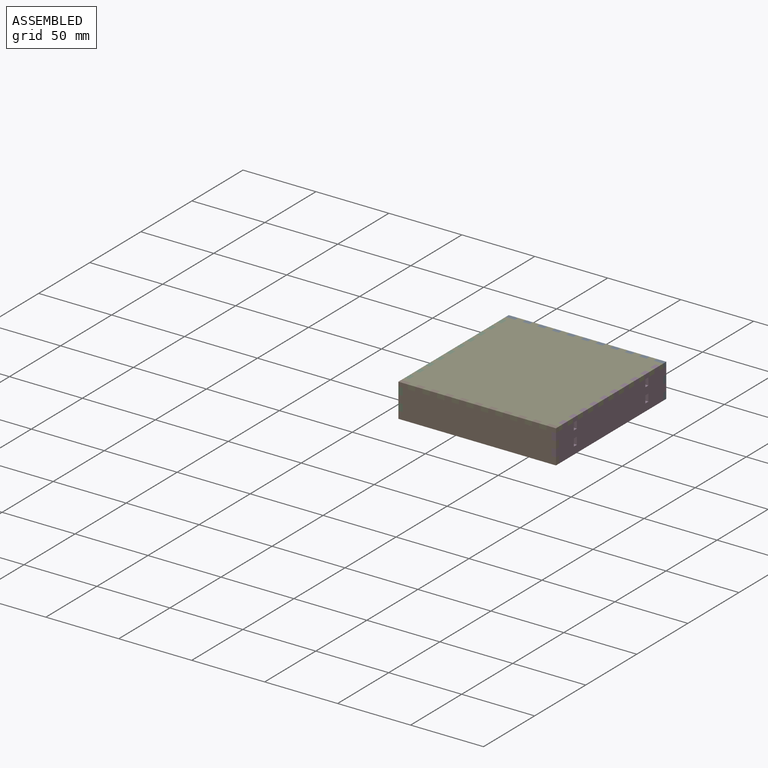
[diagram: assembled view]
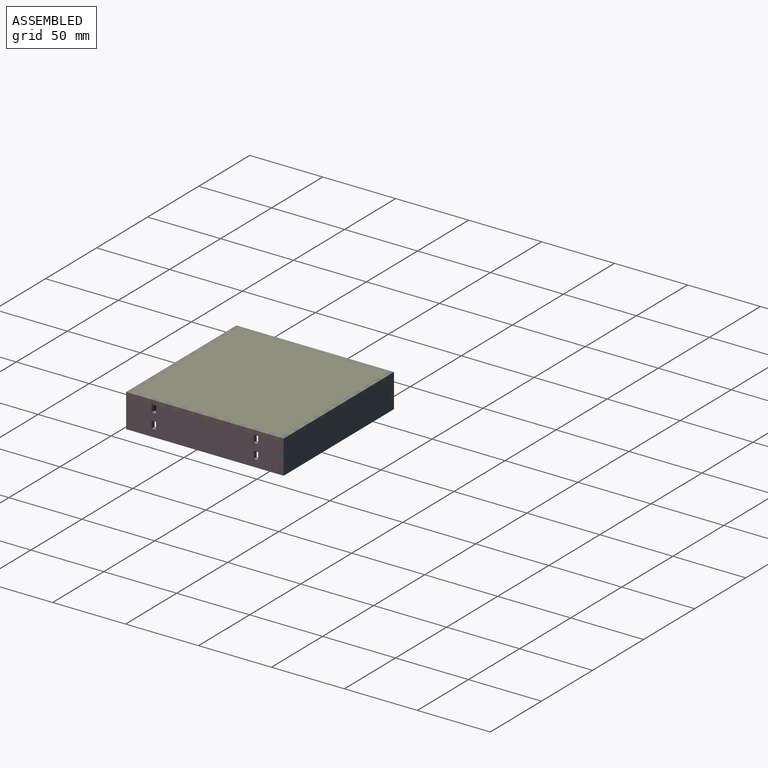
[diagram: assembled view, second angle]
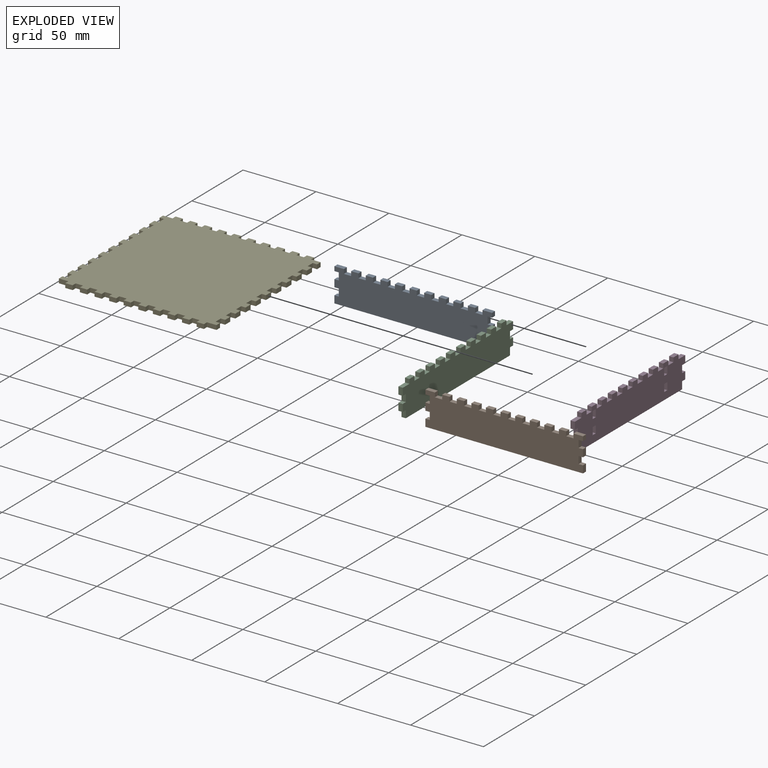
[diagram: exploded view]
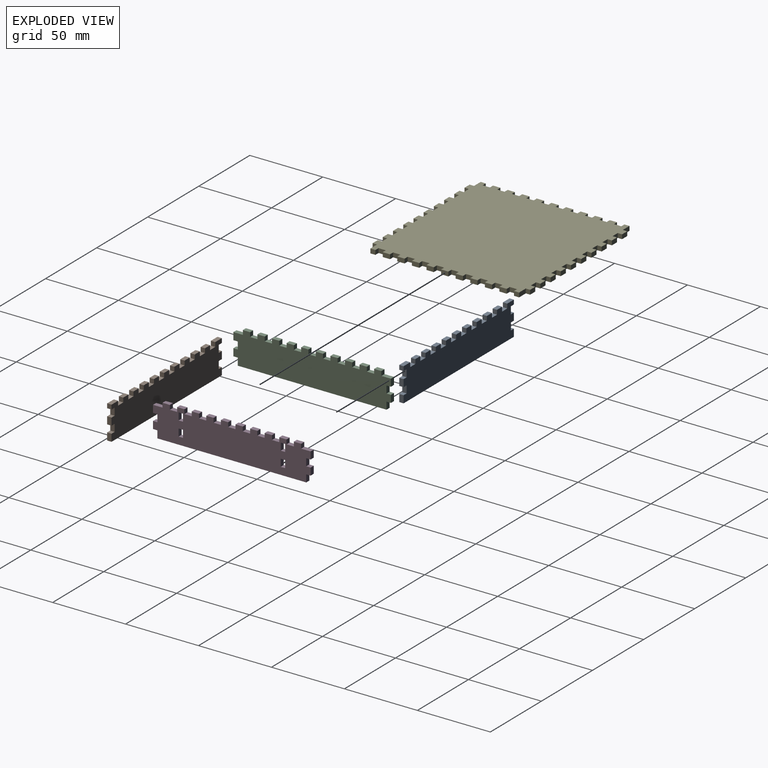
[diagram: exploded view, second angle]
ASSEMBLY  parts=5 mates=4
PART A: 62 faces, bbox 108x3x23 mm
  f0: plane 108x23mm, normal (0,1,0), area 2274mm2, adj f1,f2,f3,f4,f5,f6,f7,f8
  f1: plane 5x3mm, normal (0,0,1), area 15mm2, adj f0,f15,f47,f59
  f2: plane 5x3mm, normal (0,0,1), area 15mm2, adj f0,f15,f58,f60
  f3: plane 5x3mm, normal (0,0,1), area 15mm2, adj f0,f15,f51,f53
  f4: plane 5x3mm, normal (0,0,1), area 15mm2, adj f0,f15,f50,f56
  f5: plane 5x3mm, normal (0,0,1), area 15mm2, adj f0,f15,f40,f45
  f6: plane 5x3mm, normal (0,0,1), area 15mm2, adj f0,f15,f37,f39
  f7: plane 5x3mm, normal (0,0,1), area 15mm2, adj f0,f15,f34,f36
  f8: plane 5x3mm, normal (0,0,1), area 15mm2, adj f0,f15,f31,f33
  f9: plane 5x3mm, normal (0,0,1), area 15mm2, adj f0,f15,f27,f30
  f10: plane 5x3mm, normal (0,0,1), area 15mm2, adj f0,f15,f29,f54
  f11: plane 5x3mm, normal (1,0,0), area 15mm2, adj f0,f15,f22,f25
  f12: plane 5x3mm, normal (-1,0,0), area 15mm2, adj f0,f15,f17,f19
  f13: plane 5x3mm, normal (1,0,0), area 15mm2, adj f0,f15,f24,f46
  f14: plane 5x3mm, normal (-1,0,0), area 15mm2, adj f0,f15,f20,f42
  f15: plane 108x23mm, normal (0,-1,0), area 2274mm2, adj f1,f2,f3,f4,f5,f6,f7,f8
  f16: plane 108x3mm, normal (0,0,-1), area 324mm2, adj f0,f15,f18,f26
  f17: plane 3x3mm, normal (0,0,1), area 9mm2, adj f0,f12,f15,f18
  f18: plane 5x3mm, normal (-1,0,0), area 15mm2, adj f0,f15,f16,f17
  f19: plane 3x3mm, normal (0,0,-1), area 9mm2, adj f0,f12,f15,f21
  f20: plane 3x3mm, normal (0,0,1), area 9mm2, adj f0,f14,f15,f21
  f21: plane 5x3mm, normal (-1,0,0), area 15mm2, adj f0,f15,f19,f20
  f22: plane 3x3mm, normal (0,0,-1), area 9mm2, adj f0,f11,f15,f23
  f23: plane 5x3mm, normal (1,0,0), area 15mm2, adj f0,f15,f22,f24
  f24: plane 3x3mm, normal (0,0,1), area 9mm2, adj f0,f13,f15,f23
  f25: plane 3x3mm, normal (0,0,1), area 9mm2, adj f0,f11,f15,f26
  f26: plane 5x3mm, normal (1,0,0), area 15mm2, adj f0,f15,f16,f25
  f27: plane 3x3mm, normal (-1,0,0), area 9mm2, adj f0,f9,f15,f28
  f28: plane 5x3mm, normal (0,0,1), area 15mm2, adj f0,f15,f27,f29
  f29: plane 3x3mm, normal (1,0,0), area 9mm2, adj f0,f10,f15,f28
  f30: plane 3x3mm, normal (1,0,0), area 9mm2, adj f0,f9,f15,f32
  f31: plane 3x3mm, normal (-1,0,0), area 9mm2, adj f0,f8,f15,f32
  f32: plane 5x3mm, normal (0,0,1), area 15mm2, adj f0,f15,f30,f31
  f33: plane 3x3mm, normal (1,0,0), area 9mm2, adj f0,f8,f15,f35
  f34: plane 3x3mm, normal (-1,0,0), area 9mm2, adj f0,f7,f15,f35
  f35: plane 5x3mm, normal (0,0,1), area 15mm2, adj f0,f15,f33,f34
  f36: plane 3x3mm, normal (1,0,0), area 9mm2, adj f0,f7,f15,f38
  f37: plane 3x3mm, normal (-1,0,0), area 9mm2, adj f0,f6,f15,f38
  f38: plane 5x3mm, normal (0,0,1), area 15mm2, adj f0,f15,f36,f37
  f39: plane 3x3mm, normal (1,0,0), area 9mm2, adj f0,f6,f15,f41
  f40: plane 3x3mm, normal (-1,0,0), area 9mm2, adj f0,f5,f15,f41
  f41: plane 5x3mm, normal (0,0,1), area 15mm2, adj f0,f15,f39,f40
  f42: plane 3x3mm, normal (0,0,-1), area 9mm2, adj f0,f14,f15,f43
  f43: plane 3x3mm, normal (-1,0,0), area 9mm2, adj f0,f15,f42,f44
  f44: plane 6.5x3mm, normal (0,0,1), area 19.5mm2, adj f0,f15,f43,f45
  f45: plane 3x3mm, normal (1,0,0), area 9mm2, adj f0,f5,f15,f44
  f46: plane 3x3mm, normal (0,0,-1), area 9mm2, adj f0,f13,f15,f49
  f47: plane 3x3mm, normal (-1,0,0), area 9mm2, adj f0,f1,f15,f48
  f48: plane 6.5x3mm, normal (0,0,1), area 19.5mm2, adj f0,f15,f47,f49
  f49: plane 3x3mm, normal (1,0,0), area 9mm2, adj f0,f15,f46,f48
  f50: plane 3x3mm, normal (1,0,0), area 9mm2, adj f0,f4,f15,f52
  f51: plane 3x3mm, normal (-1,0,0), area 9mm2, adj f0,f3,f15,f52
  f52: plane 5x3mm, normal (0,0,1), area 15mm2, adj f0,f15,f50,f51
  f53: plane 3x3mm, normal (1,0,0), area 9mm2, adj f0,f3,f15,f55
  f54: plane 3x3mm, normal (-1,0,0), area 9mm2, adj f0,f10,f15,f55
  f55: plane 5x3mm, normal (0,0,1), area 15mm2, adj f0,f15,f53,f54
  f56: plane 3x3mm, normal (-1,0,0), area 9mm2, adj f0,f4,f15,f57
  f57: plane 5x3mm, normal (0,0,1), area 15mm2, adj f0,f15,f56,f58
  f58: plane 3x3mm, normal (1,0,0), area 9mm2, adj f0,f2,f15,f57
  f59: plane 3x3mm, normal (1,0,0), area 9mm2, adj f0,f1,f15,f61
  f60: plane 3x3mm, normal (-1,0,0), area 9mm2, adj f0,f2,f15,f61
  f61: plane 5x3mm, normal (0,0,1), area 15mm2, adj f0,f15,f59,f60
PART B: same geometry as A
PART C: 58 faces, bbox 108x3x23 mm
  f0: plane 6.5x3mm, normal (0,0,-1), area 19.5mm2, adj f15,f16,f18,f56
  f1: plane 5x3mm, normal (0,0,-1), area 15mm2, adj f15,f16,f51,f55
  f2: plane 5x3mm, normal (0,0,-1), area 15mm2, adj f15,f16,f46,f50
  f3: plane 5x3mm, normal (0,0,-1), area 15mm2, adj f15,f16,f43,f47
  f4: plane 5x3mm, normal (0,0,-1), area 15mm2, adj f15,f16,f44,f53
  f5: plane 5x3mm, normal (0,0,-1), area 15mm2, adj f15,f16,f37,f41
  f6: plane 5x3mm, normal (0,0,-1), area 15mm2, adj f15,f16,f34,f38
  f7: plane 5x3mm, normal (0,0,-1), area 15mm2, adj f15,f16,f31,f35
  f8: plane 5x3mm, normal (0,0,-1), area 15mm2, adj f15,f16,f28,f32
  f9: plane 5x3mm, normal (0,0,-1), area 15mm2, adj f15,f16,f29,f49
  f10: plane 5x3mm, normal (1,0,0), area 15mm2, adj f15,f16,f24,f57
  f11: plane 5x3mm, normal (1,0,0), area 15mm2, adj f15,f16,f22,f25
  f12: plane 5x3mm, normal (-1,0,0), area 15mm2, adj f15,f16,f20,f57
  f13: plane 5x3mm, normal (-1,0,0), area 15mm2, adj f15,f16,f17,f19
  f14: plane 6.5x3mm, normal (0,0,-1), area 19.5mm2, adj f15,f16,f26,f40
  f15: plane 108x23mm, normal (0,-1,0), area 2250mm2, adj f0,f1,f2,f3,f4,f5,f6,f7
  f16: plane 108x23mm, normal (0,1,0), area 2250mm2, adj f0,f1,f2,f3,f4,f5,f6,f7
  f17: plane 3x3mm, normal (0,0,1), area 9mm2, adj f13,f15,f16,f18
  f18: plane 5x3mm, normal (-1,0,0), area 15mm2, adj f0,f15,f16,f17
  f19: plane 3x3mm, normal (0,0,-1), area 9mm2, adj f13,f15,f16,f21
  f20: plane 3x3mm, normal (0,0,1), area 9mm2, adj f12,f15,f16,f21
  f21: plane 5x3mm, normal (-1,0,0), area 15mm2, adj f15,f16,f19,f20
  f22: plane 3x3mm, normal (0,0,-1), area 9mm2, adj f11,f15,f16,f23
  f23: plane 5x3mm, normal (1,0,0), area 15mm2, adj f15,f16,f22,f24
  f24: plane 3x3mm, normal (0,0,1), area 9mm2, adj f10,f15,f16,f23
  f25: plane 3x3mm, normal (0,0,1), area 9mm2, adj f11,f15,f16,f26
  f26: plane 5x3mm, normal (1,0,0), area 15mm2, adj f14,f15,f16,f25
  f27: plane 5x3mm, normal (0,0,-1), area 15mm2, adj f15,f16,f28,f29
  f28: plane 3x3mm, normal (1,0,0), area 9mm2, adj f8,f15,f16,f27
  f29: plane 3x3mm, normal (-1,0,0), area 9mm2, adj f9,f15,f16,f27
  f30: plane 5x3mm, normal (0,0,-1), area 15mm2, adj f15,f16,f31,f32
  f31: plane 3x3mm, normal (1,0,0), area 9mm2, adj f7,f15,f16,f30
  f32: plane 3x3mm, normal (-1,0,0), area 9mm2, adj f8,f15,f16,f30
  f33: plane 5x3mm, normal (0,0,-1), area 15mm2, adj f15,f16,f34,f35
  f34: plane 3x3mm, normal (1,0,0), area 9mm2, adj f6,f15,f16,f33
  f35: plane 3x3mm, normal (-1,0,0), area 9mm2, adj f7,f15,f16,f33
  f36: plane 5x3mm, normal (0,0,-1), area 15mm2, adj f15,f16,f37,f38
  f37: plane 3x3mm, normal (1,0,0), area 9mm2, adj f5,f15,f16,f36
  f38: plane 3x3mm, normal (-1,0,0), area 9mm2, adj f6,f15,f16,f36
  f39: plane 5x3mm, normal (0,0,-1), area 15mm2, adj f15,f16,f40,f41
  f40: plane 3x3mm, normal (1,0,0), area 9mm2, adj f14,f15,f16,f39
  f41: plane 3x3mm, normal (-1,0,0), area 9mm2, adj f5,f15,f16,f39
  f42: plane 5x3mm, normal (0,0,-1), area 15mm2, adj f15,f16,f43,f44
  f43: plane 3x3mm, normal (1,0,0), area 9mm2, adj f3,f15,f16,f42
  f44: plane 3x3mm, normal (-1,0,0), area 9mm2, adj f4,f15,f16,f42
  f45: plane 5x3mm, normal (0,0,-1), area 15mm2, adj f15,f16,f46,f47
  f46: plane 3x3mm, normal (1,0,0), area 9mm2, adj f2,f15,f16,f45
  f47: plane 3x3mm, normal (-1,0,0), area 9mm2, adj f3,f15,f16,f45
  f48: plane 5x3mm, normal (0,0,-1), area 15mm2, adj f15,f16,f49,f50
  f49: plane 3x3mm, normal (1,0,0), area 9mm2, adj f9,f15,f16,f48
  f50: plane 3x3mm, normal (-1,0,0), area 9mm2, adj f2,f15,f16,f48
  f51: plane 3x3mm, normal (-1,0,0), area 9mm2, adj f1,f15,f16,f52
  f52: plane 5x3mm, normal (0,0,-1), area 15mm2, adj f15,f16,f51,f53
  f53: plane 3x3mm, normal (1,0,0), area 9mm2, adj f4,f15,f16,f52
  f54: plane 5x3mm, normal (0,0,-1), area 15mm2, adj f15,f16,f55,f56
  f55: plane 3x3mm, normal (1,0,0), area 9mm2, adj f1,f15,f16,f54
  f56: plane 3x3mm, normal (-1,0,0), area 9mm2, adj f0,f15,f16,f54
  f57: plane 102x3mm, normal (0,0,1), area 306mm2, adj f10,f12,f15,f16
PART D: 74 faces, bbox 108x3x23 mm
  f0: plane 108x23mm, normal (0,-1,0), area 2190mm2, adj f2,f3,f4,f5,f6,f7,f8,f9
  f1: plane 108x23mm, normal (0,1,0), area 2190mm2, adj f2,f3,f4,f5,f6,f7,f8,f9
  f2: plane 6.5x3mm, normal (0,0,-1), area 19.5mm2, adj f0,f1,f18,f56
  f3: plane 5x3mm, normal (0,0,-1), area 15mm2, adj f0,f1,f51,f55
  f4: plane 5x3mm, normal (0,0,-1), area 15mm2, adj f0,f1,f46,f50
  f5: plane 5x3mm, normal (0,0,-1), area 15mm2, adj f0,f1,f43,f47
  f6: plane 5x3mm, normal (0,0,-1), area 15mm2, adj f0,f1,f44,f53
  f7: plane 5x3mm, normal (0,0,-1), area 15mm2, adj f0,f1,f37,f41
  f8: plane 5x3mm, normal (0,0,-1), area 15mm2, adj f0,f1,f34,f38
  f9: plane 5x3mm, normal (0,0,-1), area 15mm2, adj f0,f1,f31,f35
  f10: plane 5x3mm, normal (0,0,-1), area 15mm2, adj f0,f1,f28,f32
  f11: plane 5x3mm, normal (0,0,-1), area 15mm2, adj f0,f1,f29,f49
  f12: plane 5x3mm, normal (1,0,0), area 15mm2, adj f0,f1,f24,f57
  f13: plane 5x3mm, normal (1,0,0), area 15mm2, adj f0,f1,f22,f25
  f14: plane 5x3mm, normal (-1,0,0), area 15mm2, adj f0,f1,f20,f57
  f15: plane 5x3mm, normal (-1,0,0), area 15mm2, adj f0,f1,f17,f19
  f16: plane 6.5x3mm, normal (0,0,-1), area 19.5mm2, adj f0,f1,f26,f40
  f17: plane 3x3mm, normal (0,0,1), area 9mm2, adj f0,f1,f15,f18
  f18: plane 5x3mm, normal (-1,0,0), area 15mm2, adj f0,f1,f2,f17
  f19: plane 3x3mm, normal (0,0,-1), area 9mm2, adj f0,f1,f15,f21
  f20: plane 3x3mm, normal (0,0,1), area 9mm2, adj f0,f1,f14,f21
  f21: plane 5x3mm, normal (-1,0,0), area 15mm2, adj f0,f1,f19,f20
  f22: plane 3x3mm, normal (0,0,-1), area 9mm2, adj f0,f1,f13,f23
  f23: plane 5x3mm, normal (1,0,0), area 15mm2, adj f0,f1,f22,f24
  f24: plane 3x3mm, normal (0,0,1), area 9mm2, adj f0,f1,f12,f23
  f25: plane 3x3mm, normal (0,0,1), area 9mm2, adj f0,f1,f13,f26
  f26: plane 5x3mm, normal (1,0,0), area 15mm2, adj f0,f1,f16,f25
  f27: plane 5x3mm, normal (0,0,-1), area 15mm2, adj f0,f1,f28,f29
  f28: plane 3x3mm, normal (1,0,0), area 9mm2, adj f0,f1,f10,f27
  f29: plane 3x3mm, normal (-1,0,0), area 9mm2, adj f0,f1,f11,f27
  f30: plane 5x3mm, normal (0,0,-1), area 15mm2, adj f0,f1,f31,f32
  f31: plane 3x3mm, normal (1,0,0), area 9mm2, adj f0,f1,f9,f30
  f32: plane 3x3mm, normal (-1,0,0), area 9mm2, adj f0,f1,f10,f30
  f33: plane 5x3mm, normal (0,0,-1), area 15mm2, adj f0,f1,f34,f35
  f34: plane 3x3mm, normal (1,0,0), area 9mm2, adj f0,f1,f8,f33
  f35: plane 3x3mm, normal (-1,0,0), area 9mm2, adj f0,f1,f9,f33
  f36: plane 5x3mm, normal (0,0,-1), area 15mm2, adj f0,f1,f37,f38
  f37: plane 3x3mm, normal (1,0,0), area 9mm2, adj f0,f1,f7,f36
  f38: plane 3x3mm, normal (-1,0,0), area 9mm2, adj f0,f1,f8,f36
  f39: plane 5x3mm, normal (0,0,-1), area 15mm2, adj f0,f1,f40,f41
  f40: plane 3x3mm, normal (1,0,0), area 9mm2, adj f0,f1,f16,f39
  f41: plane 3x3mm, normal (-1,0,0), area 9mm2, adj f0,f1,f7,f39
  f42: plane 5x3mm, normal (0,0,-1), area 15mm2, adj f0,f1,f43,f44
  f43: plane 3x3mm, normal (1,0,0), area 9mm2, adj f0,f1,f5,f42
  f44: plane 3x3mm, normal (-1,0,0), area 9mm2, adj f0,f1,f6,f42
  f45: plane 5x3mm, normal (0,0,-1), area 15mm2, adj f0,f1,f46,f47
  f46: plane 3x3mm, normal (1,0,0), area 9mm2, adj f0,f1,f4,f45
  f47: plane 3x3mm, normal (-1,0,0), area 9mm2, adj f0,f1,f5,f45
  f48: plane 5x3mm, normal (0,0,-1), area 15mm2, adj f0,f1,f49,f50
  f49: plane 3x3mm, normal (1,0,0), area 9mm2, adj f0,f1,f11,f48
  f50: plane 3x3mm, normal (-1,0,0), area 9mm2, adj f0,f1,f4,f48
  f51: plane 3x3mm, normal (-1,0,0), area 9mm2, adj f0,f1,f3,f52
  f52: plane 5x3mm, normal (0,0,-1), area 15mm2, adj f0,f1,f51,f53
  f53: plane 3x3mm, normal (1,0,0), area 9mm2, adj f0,f1,f6,f52
  f54: plane 5x3mm, normal (0,0,-1), area 15mm2, adj f0,f1,f55,f56
  f55: plane 3x3mm, normal (1,0,0), area 9mm2, adj f0,f1,f3,f54
  f56: plane 3x3mm, normal (-1,0,0), area 9mm2, adj f0,f1,f2,f54
  f57: plane 102x3mm, normal (0,0,1), area 306mm2, adj f0,f1,f12,f14
  f58: plane 3x3mm, normal (0,0,-1), area 9mm2, adj f0,f1,f59,f61
  f59: plane 5x3mm, normal (-1,0,0), area 15mm2, adj f0,f1,f58,f60
  f60: plane 3x3mm, normal (0,0,1), area 9mm2, adj f0,f1,f59,f61
  f61: plane 5x3mm, normal (1,0,0), area 15mm2, adj f0,f1,f58,f60
  f62: plane 3x3mm, normal (0,0,-1), area 9mm2, adj f0,f1,f63,f65
  f63: plane 5x3mm, normal (-1,0,0), area 15mm2, adj f0,f1,f62,f64
  f64: plane 3x3mm, normal (0,0,1), area 9mm2, adj f0,f1,f63,f65
  f65: plane 5x3mm, normal (1,0,0), area 15mm2, adj f0,f1,f62,f64
  f66: plane 3x3mm, normal (0,0,1), area 9mm2, adj f0,f1,f67,f69
  f67: plane 5x3mm, normal (1,0,0), area 15mm2, adj f0,f1,f66,f68
  f68: plane 3x3mm, normal (0,0,-1), area 9mm2, adj f0,f1,f67,f69
  f69: plane 5x3mm, normal (-1,0,0), area 15mm2, adj f0,f1,f66,f68
  f70: plane 3x3mm, normal (0,0,1), area 9mm2, adj f0,f1,f71,f73
  f71: plane 5x3mm, normal (1,0,0), area 15mm2, adj f0,f1,f70,f72
  f72: plane 3x3mm, normal (0,0,-1), area 9mm2, adj f0,f1,f71,f73
  f73: plane 5x3mm, normal (-1,0,0), area 15mm2, adj f0,f1,f70,f72
PART E: 166 faces, bbox 108x108x3 mm
  f0: plane 5x3mm, normal (-1,0,0), area 15mm2, adj f42,f43,f140,f163
  f1: plane 6.5x3mm, normal (-1,0,0), area 19.5mm2, adj f42,f43,f104,f160
  f2: plane 5x3mm, normal (-1,0,0), area 15mm2, adj f42,f43,f145,f159
  f3: plane 5x3mm, normal (-1,0,0), area 15mm2, adj f42,f43,f156,f161
  f4: plane 5x3mm, normal (-1,0,0), area 15mm2, adj f42,f43,f143,f153
  f5: plane 5x3mm, normal (-1,0,0), area 15mm2, adj f42,f43,f150,f154
  f6: plane 5x3mm, normal (-1,0,0), area 15mm2, adj f42,f43,f147,f151
  f7: plane 5x3mm, normal (-1,0,0), area 15mm2, adj f42,f43,f142,f164
  f8: plane 5x3mm, normal (-1,0,0), area 15mm2, adj f42,f43,f136,f139
  f9: plane 5x3mm, normal (-1,0,0), area 15mm2, adj f42,f43,f138,f148
  f10: plane 5x3mm, normal (1,0,0), area 15mm2, adj f42,f43,f129,f133
  f11: plane 5x3mm, normal (1,0,0), area 15mm2, adj f42,f43,f108,f130
  f12: plane 5x3mm, normal (1,0,0), area 15mm2, adj f42,f43,f123,f127
  f13: plane 5x3mm, normal (1,0,0), area 15mm2, adj f42,f43,f125,f135
  f14: plane 5x3mm, normal (1,0,0), area 15mm2, adj f42,f43,f121,f132
  f15: plane 6.5x3mm, normal (1,0,0), area 19.5mm2, adj f42,f43,f103,f118
  f16: plane 5x3mm, normal (1,0,0), area 15mm2, adj f42,f43,f115,f120
  f17: plane 5x3mm, normal (1,0,0), area 15mm2, adj f42,f43,f112,f117
  f18: plane 5x3mm, normal (1,0,0), area 15mm2, adj f42,f43,f109,f114
  f19: plane 5x3mm, normal (1,0,0), area 15mm2, adj f42,f43,f106,f111
  f20: plane 5x3mm, normal (0,-1,0), area 15mm2, adj f42,f43,f82,f102
  f21: plane 5x3mm, normal (0,1,0), area 15mm2, adj f42,f43,f56,f101
  f22: plane 5x3mm, normal (0,-1,0), area 15mm2, adj f42,f43,f94,f96
  f23: plane 5x3mm, normal (0,-1,0), area 15mm2, adj f42,f43,f77,f92
  f24: plane 5x3mm, normal (0,-1,0), area 15mm2, adj f42,f43,f89,f105
  f25: plane 5x3mm, normal (0,-1,0), area 15mm2, adj f42,f43,f86,f91
  f26: plane 5x3mm, normal (0,-1,0), area 15mm2, adj f42,f43,f83,f88
  f27: plane 5x3mm, normal (0,-1,0), area 15mm2, adj f42,f43,f80,f95
  f28: plane 5x3mm, normal (0,-1,0), area 15mm2, adj f42,f43,f76,f78
  f29: plane 5x3mm, normal (0,-1,0), area 15mm2, adj f42,f43,f73,f74
  f30: plane 5x3mm, normal (0,-1,0), area 15mm2, adj f42,f43,f71,f85
  f31: plane 5x3mm, normal (0,1,0), area 15mm2, adj f42,f43,f62,f70
  f32: plane 5x3mm, normal (0,1,0), area 15mm2, adj f42,f43,f67,f98
  f33: plane 5x3mm, normal (0,1,0), area 15mm2, adj f42,f43,f64,f65
  f34: plane 5x3mm, normal (0,1,0), area 15mm2, adj f42,f43,f59,f68
  f35: plane 5x3mm, normal (0,1,0), area 15mm2, adj f42,f43,f53,f58
  f36: plane 5x3mm, normal (0,1,0), area 15mm2, adj f42,f43,f50,f55
  f37: plane 5x3mm, normal (0,1,0), area 15mm2, adj f42,f43,f47,f52
  f38: plane 5x3mm, normal (0,1,0), area 15mm2, adj f42,f43,f45,f49
  f39: plane 5x3mm, normal (0,1,0), area 15mm2, adj f42,f43,f44,f60
  f40: plane 6.5x3mm, normal (1,0,0), area 19.5mm2, adj f42,f43,f100,f124
  f41: plane 6.5x3mm, normal (-1,0,0), area 19.5mm2, adj f42,f43,f99,f157
  f42: plane 108x108mm, normal (0,0,1), area 11016mm2, adj f0,f1,f2,f3,f4,f5,f6,f7
  f43: plane 108x108mm, normal (0,0,-1), area 11016mm2, adj f0,f1,f2,f3,f4,f5,f6,f7
  f44: plane 3x3mm, normal (-1,0,0), area 9mm2, adj f39,f42,f43,f46
  f45: plane 3x3mm, normal (1,0,0), area 9mm2, adj f38,f42,f43,f46
  f46: plane 5x3mm, normal (0,1,0), area 15mm2, adj f42,f43,f44,f45
  f47: plane 3x3mm, normal (1,0,0), area 9mm2, adj f37,f42,f43,f48
  f48: plane 5x3mm, normal (0,1,0), area 15mm2, adj f42,f43,f47,f49
  f49: plane 3x3mm, normal (-1,0,0), area 9mm2, adj f38,f42,f43,f48
  f50: plane 3x3mm, normal (1,0,0), area 9mm2, adj f36,f42,f43,f51
  f51: plane 5x3mm, normal (0,1,0), area 15mm2, adj f42,f43,f50,f52
  f52: plane 3x3mm, normal (-1,0,0), area 9mm2, adj f37,f42,f43,f51
  f53: plane 3x3mm, normal (1,0,0), area 9mm2, adj f35,f42,f43,f54
  f54: plane 5x3mm, normal (0,1,0), area 15mm2, adj f42,f43,f53,f55
  f55: plane 3x3mm, normal (-1,0,0), area 9mm2, adj f36,f42,f43,f54
  f56: plane 3x3mm, normal (1,0,0), area 9mm2, adj f21,f42,f43,f57
  f57: plane 5x3mm, normal (0,1,0), area 15mm2, adj f42,f43,f56,f58
  f58: plane 3x3mm, normal (-1,0,0), area 9mm2, adj f35,f42,f43,f57
  f59: plane 3x3mm, normal (-1,0,0), area 9mm2, adj f34,f42,f43,f61
  f60: plane 3x3mm, normal (1,0,0), area 9mm2, adj f39,f42,f43,f61
  f61: plane 5x3mm, normal (0,1,0), area 15mm2, adj f42,f43,f59,f60
  f62: plane 3x3mm, normal (1,0,0), area 9mm2, adj f31,f42,f43,f63
  f63: plane 5x3mm, normal (0,1,0), area 15mm2, adj f42,f43,f62,f64
  f64: plane 3x3mm, normal (-1,0,0), area 9mm2, adj f33,f42,f43,f63
  f65: plane 3x3mm, normal (1,0,0), area 9mm2, adj f33,f42,f43,f66
  f66: plane 5x3mm, normal (0,1,0), area 15mm2, adj f42,f43,f65,f67
  f67: plane 3x3mm, normal (-1,0,0), area 9mm2, adj f32,f42,f43,f66
  f68: plane 3x3mm, normal (1,0,0), area 9mm2, adj f34,f42,f43,f69
  f69: plane 5x3mm, normal (0,1,0), area 15mm2, adj f42,f43,f68,f70
  f70: plane 3x3mm, normal (-1,0,0), area 9mm2, adj f31,f42,f43,f69
  f71: plane 3x3mm, normal (-1,0,0), area 9mm2, adj f30,f42,f43,f72
  f72: plane 5x3mm, normal (0,-1,0), area 15mm2, adj f42,f43,f71,f73
  f73: plane 3x3mm, normal (1,0,0), area 9mm2, adj f29,f42,f43,f72
  f74: plane 3x3mm, normal (-1,0,0), area 9mm2, adj f29,f42,f43,f75
  f75: plane 5x3mm, normal (0,-1,0), area 15mm2, adj f42,f43,f74,f76
  f76: plane 3x3mm, normal (1,0,0), area 9mm2, adj f28,f42,f43,f75
  f77: plane 3x3mm, normal (1,0,0), area 9mm2, adj f23,f42,f43,f79
  f78: plane 3x3mm, normal (-1,0,0), area 9mm2, adj f28,f42,f43,f79
  f79: plane 5x3mm, normal (0,-1,0), area 15mm2, adj f42,f43,f77,f78
  f80: plane 3x3mm, normal (-1,0,0), area 9mm2, adj f27,f42,f43,f81
  f81: plane 5x3mm, normal (0,-1,0), area 15mm2, adj f42,f43,f80,f82
  f82: plane 3x3mm, normal (1,0,0), area 9mm2, adj f20,f42,f43,f81
  f83: plane 3x3mm, normal (-1,0,0), area 9mm2, adj f26,f42,f43,f84
  f84: plane 5x3mm, normal (0,-1,0), area 15mm2, adj f42,f43,f83,f85
  f85: plane 3x3mm, normal (1,0,0), area 9mm2, adj f30,f42,f43,f84
  f86: plane 3x3mm, normal (-1,0,0), area 9mm2, adj f25,f42,f43,f87
  f87: plane 5x3mm, normal (0,-1,0), area 15mm2, adj f42,f43,f86,f88
  f88: plane 3x3mm, normal (1,0,0), area 9mm2, adj f26,f42,f43,f87
  f89: plane 3x3mm, normal (-1,0,0), area 9mm2, adj f24,f42,f43,f90
  f90: plane 5x3mm, normal (0,-1,0), area 15mm2, adj f42,f43,f89,f91
  f91: plane 3x3mm, normal (1,0,0), area 9mm2, adj f25,f42,f43,f90
  f92: plane 3x3mm, normal (-1,0,0), area 9mm2, adj f23,f42,f43,f93
  f93: plane 5x3mm, normal (0,-1,0), area 15mm2, adj f42,f43,f92,f94
  f94: plane 3x3mm, normal (1,0,0), area 9mm2, adj f22,f42,f43,f93
  f95: plane 3x3mm, normal (1,0,0), area 9mm2, adj f27,f42,f43,f97
  f96: plane 3x3mm, normal (-1,0,0), area 9mm2, adj f22,f42,f43,f97
  f97: plane 5x3mm, normal (0,-1,0), area 15mm2, adj f42,f43,f95,f96
  f98: plane 3x3mm, normal (1,0,0), area 9mm2, adj f32,f42,f43,f99
  f99: plane 3.5x3mm, normal (0,1,0), area 10.5mm2, adj f41,f42,f43,f98
  f100: plane 3.5x3mm, normal (0,1,0), area 10.5mm2, adj f40,f42,f43,f101
  f101: plane 3x3mm, normal (-1,0,0), area 9mm2, adj f21,f42,f43,f100
  f102: plane 3x3mm, normal (-1,0,0), area 9mm2, adj f20,f42,f43,f103
  f103: plane 3.5x3mm, normal (0,-1,0), area 10.5mm2, adj f15,f42,f43,f102
  f104: plane 3.5x3mm, normal (0,-1,0), area 10.5mm2, adj f1,f42,f43,f105
  f105: plane 3x3mm, normal (1,0,0), area 9mm2, adj f24,f42,f43,f104
  f106: plane 3x3mm, normal (0,-1,0), area 9mm2, adj f19,f42,f43,f107
  f107: plane 5x3mm, normal (1,0,0), area 15mm2, adj f42,f43,f106,f108
  f108: plane 3x3mm, normal (0,1,0), area 9mm2, adj f11,f42,f43,f107
  f109: plane 3x3mm, normal (0,-1,0), area 9mm2, adj f18,f42,f43,f110
  f110: plane 5x3mm, normal (1,0,0), area 15mm2, adj f42,f43,f109,f111
  f111: plane 3x3mm, normal (0,1,0), area 9mm2, adj f19,f42,f43,f110
  f112: plane 3x3mm, normal (0,-1,0), area 9mm2, adj f17,f42,f43,f113
  f113: plane 5x3mm, normal (1,0,0), area 15mm2, adj f42,f43,f112,f114
  f114: plane 3x3mm, normal (0,1,0), area 9mm2, adj f18,f42,f43,f113
  f115: plane 3x3mm, normal (0,-1,0), area 9mm2, adj f16,f42,f43,f116
  f116: plane 5x3mm, normal (1,0,0), area 15mm2, adj f42,f43,f115,f117
  f117: plane 3x3mm, normal (0,1,0), area 9mm2, adj f17,f42,f43,f116
  f118: plane 3x3mm, normal (0,-1,0), area 9mm2, adj f15,f42,f43,f119
  f119: plane 5x3mm, normal (1,0,0), area 15mm2, adj f42,f43,f118,f120
  f120: plane 3x3mm, normal (0,1,0), area 9mm2, adj f16,f42,f43,f119
  f121: plane 3x3mm, normal (0,-1,0), area 9mm2, adj f14,f42,f43,f122
  f122: plane 5x3mm, normal (1,0,0), area 15mm2, adj f42,f43,f121,f123
  f123: plane 3x3mm, normal (0,1,0), area 9mm2, adj f12,f42,f43,f122
  f124: plane 3x3mm, normal (0,1,0), area 9mm2, adj f40,f42,f43,f126
  f125: plane 3x3mm, normal (0,-1,0), area 9mm2, adj f13,f42,f43,f126
  f126: plane 5x3mm, normal (1,0,0), area 15mm2, adj f42,f43,f124,f125
  f127: plane 3x3mm, normal (0,-1,0), area 9mm2, adj f12,f42,f43,f128
  f128: plane 5x3mm, normal (1,0,0), area 15mm2, adj f42,f43,f127,f129
  f129: plane 3x3mm, normal (0,1,0), area 9mm2, adj f10,f42,f43,f128
  f130: plane 3x3mm, normal (0,-1,0), area 9mm2, adj f11,f42,f43,f131
  f131: plane 5x3mm, normal (1,0,0), area 15mm2, adj f42,f43,f130,f132
  f132: plane 3x3mm, normal (0,1,0), area 9mm2, adj f14,f42,f43,f131
  f133: plane 3x3mm, normal (0,-1,0), area 9mm2, adj f10,f42,f43,f134
  f134: plane 5x3mm, normal (1,0,0), area 15mm2, adj f42,f43,f133,f135
  f135: plane 3x3mm, normal (0,1,0), area 9mm2, adj f13,f42,f43,f134
  f136: plane 3x3mm, normal (0,1,0), area 9mm2, adj f8,f42,f43,f137
  f137: plane 5x3mm, normal (-1,0,0), area 15mm2, adj f42,f43,f136,f138
  f138: plane 3x3mm, normal (0,-1,0), area 9mm2, adj f9,f42,f43,f137
  f139: plane 3x3mm, normal (0,-1,0), area 9mm2, adj f8,f42,f43,f141
  f140: plane 3x3mm, normal (0,1,0), area 9mm2, adj f0,f42,f43,f141
  f141: plane 5x3mm, normal (-1,0,0), area 15mm2, adj f42,f43,f139,f140
  f142: plane 3x3mm, normal (0,-1,0), area 9mm2, adj f7,f42,f43,f144
  f143: plane 3x3mm, normal (0,1,0), area 9mm2, adj f4,f42,f43,f144
  f144: plane 5x3mm, normal (-1,0,0), area 15mm2, adj f42,f43,f142,f143
  f145: plane 3x3mm, normal (0,1,0), area 9mm2, adj f2,f42,f43,f146
  f146: plane 5x3mm, normal (-1,0,0), area 15mm2, adj f42,f43,f145,f147
  f147: plane 3x3mm, normal (0,-1,0), area 9mm2, adj f6,f42,f43,f146
  f148: plane 3x3mm, normal (0,1,0), area 9mm2, adj f9,f42,f43,f149
  f149: plane 5x3mm, normal (-1,0,0), area 15mm2, adj f42,f43,f148,f150
  f150: plane 3x3mm, normal (0,-1,0), area 9mm2, adj f5,f42,f43,f149
  f151: plane 3x3mm, normal (0,1,0), area 9mm2, adj f6,f42,f43,f152
  f152: plane 5x3mm, normal (-1,0,0), area 15mm2, adj f42,f43,f151,f153
  f153: plane 3x3mm, normal (0,-1,0), area 9mm2, adj f4,f42,f43,f152
  f154: plane 3x3mm, normal (0,1,0), area 9mm2, adj f5,f42,f43,f155
  f155: plane 5x3mm, normal (-1,0,0), area 15mm2, adj f42,f43,f154,f156
  f156: plane 3x3mm, normal (0,-1,0), area 9mm2, adj f3,f42,f43,f155
  f157: plane 3x3mm, normal (0,1,0), area 9mm2, adj f41,f42,f43,f158
  f158: plane 5x3mm, normal (-1,0,0), area 15mm2, adj f42,f43,f157,f159
  f159: plane 3x3mm, normal (0,-1,0), area 9mm2, adj f2,f42,f43,f158
  f160: plane 3x3mm, normal (0,-1,0), area 9mm2, adj f1,f42,f43,f162
  f161: plane 3x3mm, normal (0,1,0), area 9mm2, adj f3,f42,f43,f162
  f162: plane 5x3mm, normal (-1,0,0), area 15mm2, adj f42,f43,f160,f161
  f163: plane 3x3mm, normal (0,-1,0), area 9mm2, adj f0,f42,f43,f165
  f164: plane 3x3mm, normal (0,1,0), area 9mm2, adj f7,f42,f43,f165
  f165: plane 5x3mm, normal (-1,0,0), area 15mm2, adj f42,f43,f163,f164
PLACE A t=(38.2,-67.13,-92.96)mm
PLACE B t=(38.2,-172.13,-92.96)mm
PLACE C rot(axis=(-0.71,-0.71,0),180deg) t=(-12.8,-121.13,-92.96)mm
PLACE D rot(axis=(-0.71,-0.71,0),180deg) t=(92.2,-121.13,-92.96)mm
PLACE E rot(axis=(0,0,1),90deg) t=(38.2,-121.13,-72.96)mm
MATE fastened B.f17 <-> C.f20  axis (0,0,1) through (-14.3,-173.63,-87.96)mm
MATE fastened B.f25 <-> D.f20  axis (0,0,1) through (90.7,-173.63,-87.96)mm
MATE fastened A.f25 <-> D.f24  axis (0,0,1) through (90.7,-68.63,-87.96)mm
MATE fastened E.f100 <-> C.f15  axis (-1,0,0) through (-15.8,-73.63,-72.96)mm
